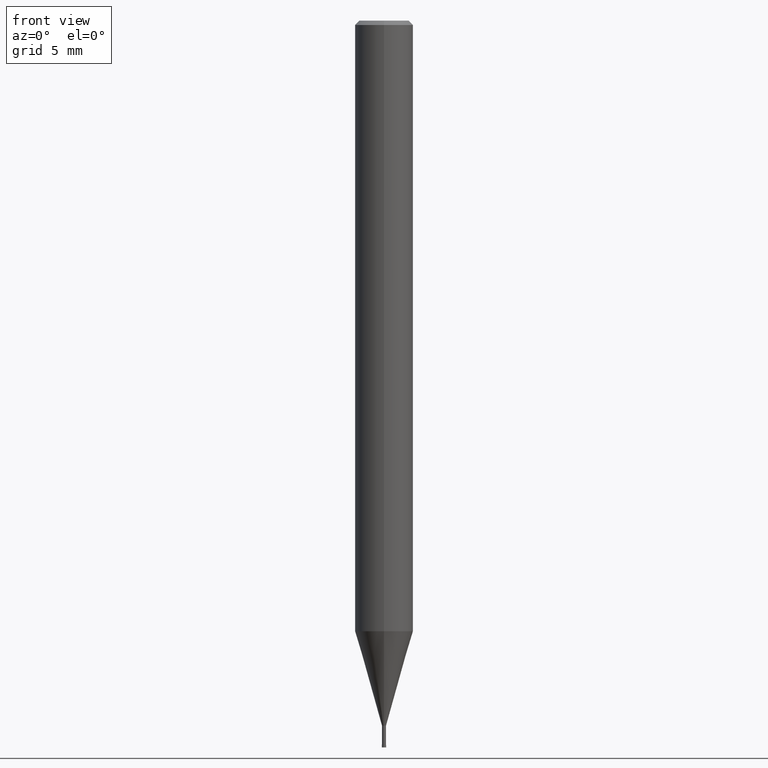
[diagram: clean part render]
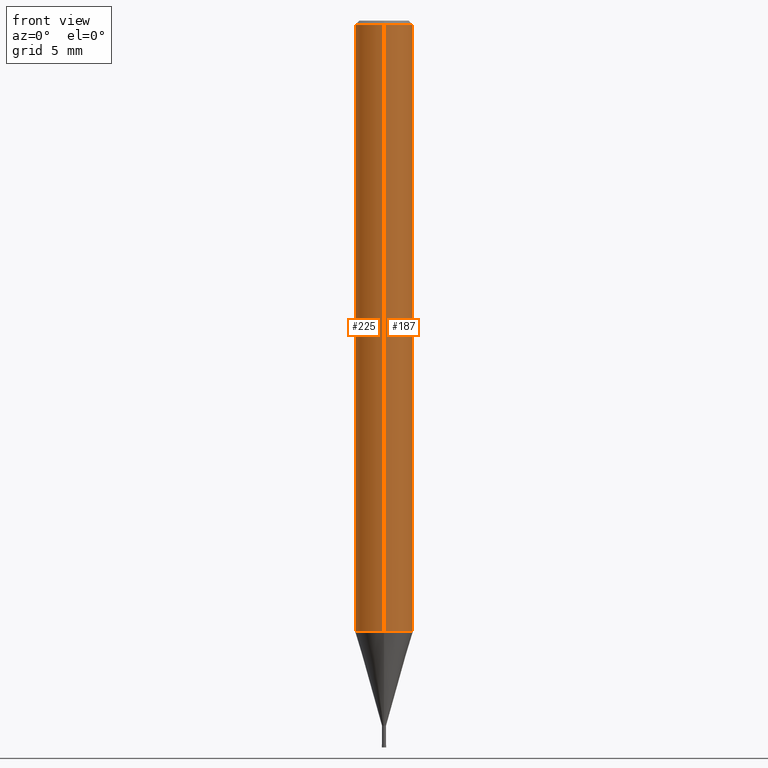
[diagram: same view with one multi-face feature highlighted, each face labeled with its STEP entity id]
A machine part, front view. The highlighted faces form ONE feature: a constant-radius fillet chain: 2 tangent blend faces with common blend radius 2 mm. The faces share edges in the B-rep.
Their STEP definitions:
[1] entity #225 (Cylinder):
#151=VERTEX_POINT('',#386);
#185=VERTEX_POINT('',#426);
#211=VERTEX_POINT('',#455);
#213=VERTEX_POINT('',#457);
#225=ADVANCED_FACE('',(#472),#473,.T.);
#241=EDGE_CURVE('',#211,#185,#491,.T.);
#251=EDGE_CURVE('',#151,#211,#501,.T.);
#271=EDGE_CURVE('',#213,#185,#524,.T.);
#351=EDGE_CURVE('',#213,#151,#614,.T.);
#386=CARTESIAN_POINT('',(2.44921270764475E-016,-2.0,-0.289999999999999));
#426=CARTESIAN_POINT('',(0.0,2.0,-42.003));
#455=CARTESIAN_POINT('',(0.0,2.0,-0.289999999999999));
#457=CARTESIAN_POINT('',(2.44921270764475E-016,-2.0,-42.003));
#472=FACE_OUTER_BOUND('',#754,.T.);
#473=CYLINDRICAL_SURFACE('',#755,2.0);
#491=LINE('',#778,#779);
#501=CIRCLE('',#795,2.0);
#524=CIRCLE('',#823,2.0);
#614=LINE('',#935,#936);
#754=EDGE_LOOP('',(#1071,#1072,#1073,#1074));
#755=AXIS2_PLACEMENT_3D('',#1075,#1076,#1077);
#778=CARTESIAN_POINT('',(-2.44921270764475E-016,2.0,-21.1465));
#779=VECTOR('',#1101,1.0);
#795=AXIS2_PLACEMENT_3D('',#1107,#1108,#1109);
#823=AXIS2_PLACEMENT_3D('',#1138,#1139,#1140);
#935=CARTESIAN_POINT('',(2.44921270764475E-016,-2.0,-21.1465));
#936=VECTOR('',#1253,1.0);
#1071=ORIENTED_EDGE('',*,*,#241,.T.);
#1072=ORIENTED_EDGE('',*,*,#271,.F.);
#1073=ORIENTED_EDGE('',*,*,#351,.T.);
#1074=ORIENTED_EDGE('',*,*,#251,.T.);
#1075=CARTESIAN_POINT('',(0.0,0.0,-21.1465));
#1076=DIRECTION('',(-0.0,-0.0,1.0));
#1077=DIRECTION('',(0.0,1.0,0.0));
#1101=DIRECTION('',(0.0,0.0,-1.0));
#1107=CARTESIAN_POINT('',(0.0,0.0,-0.289999999999999));
#1108=DIRECTION('',(0.0,0.0,-1.0));
#1109=DIRECTION('',(0.0,1.0,0.0));
#1138=CARTESIAN_POINT('',(0.0,0.0,-42.003));
#1139=DIRECTION('',(0.0,0.0,-1.0));
#1140=DIRECTION('',(0.0,1.0,0.0));
#1253=DIRECTION('',(-0.0,-0.0,1.0));
[2] entity #187 (Cylinder):
#151=VERTEX_POINT('',#386);
#153=EDGE_CURVE('',#211,#151,#388,.T.);
#185=VERTEX_POINT('',#426);
#187=ADVANCED_FACE('',(#428),#429,.T.);
#211=VERTEX_POINT('',#455);
#213=VERTEX_POINT('',#457);
#241=EDGE_CURVE('',#211,#185,#491,.T.);
#245=EDGE_CURVE('',#185,#213,#495,.T.);
#351=EDGE_CURVE('',#213,#151,#614,.T.);
#386=CARTESIAN_POINT('',(2.44921270764475E-016,-2.0,-0.289999999999999));
#388=CIRCLE('',#650,2.0);
#426=CARTESIAN_POINT('',(0.0,2.0,-42.003));
#428=FACE_OUTER_BOUND('',#698,.T.);
#429=CYLINDRICAL_SURFACE('',#699,2.0);
#455=CARTESIAN_POINT('',(0.0,2.0,-0.289999999999999));
#457=CARTESIAN_POINT('',(2.44921270764475E-016,-2.0,-42.003));
#491=LINE('',#778,#779);
#495=CIRCLE('',#784,2.0);
#614=LINE('',#935,#936);
#650=AXIS2_PLACEMENT_3D('',#952,#953,#954);
#698=EDGE_LOOP('',(#1010,#1011,#1012,#1013));
#699=AXIS2_PLACEMENT_3D('',#1014,#1015,#1016);
#778=CARTESIAN_POINT('',(-2.44921270764475E-016,2.0,-21.1465));
#779=VECTOR('',#1101,1.0);
#784=AXIS2_PLACEMENT_3D('',#1102,#1103,#1104);
#935=CARTESIAN_POINT('',(2.44921270764475E-016,-2.0,-21.1465));
#936=VECTOR('',#1253,1.0);
#952=CARTESIAN_POINT('',(0.0,0.0,-0.289999999999999));
#953=DIRECTION('',(0.0,0.0,-1.0));
#954=DIRECTION('',(0.0,1.0,0.0));
#1010=ORIENTED_EDGE('',*,*,#241,.F.);
#1011=ORIENTED_EDGE('',*,*,#153,.T.);
#1012=ORIENTED_EDGE('',*,*,#351,.F.);
#1013=ORIENTED_EDGE('',*,*,#245,.F.);
#1014=CARTESIAN_POINT('',(0.0,0.0,-21.1465));
#1015=DIRECTION('',(-0.0,-0.0,1.0));
#1016=DIRECTION('',(0.0,1.0,0.0));
#1101=DIRECTION('',(0.0,0.0,-1.0));
#1102=CARTESIAN_POINT('',(0.0,0.0,-42.003));
#1103=DIRECTION('',(0.0,0.0,-1.0));
#1104=DIRECTION('',(0.0,1.0,0.0));
#1253=DIRECTION('',(-0.0,-0.0,1.0));